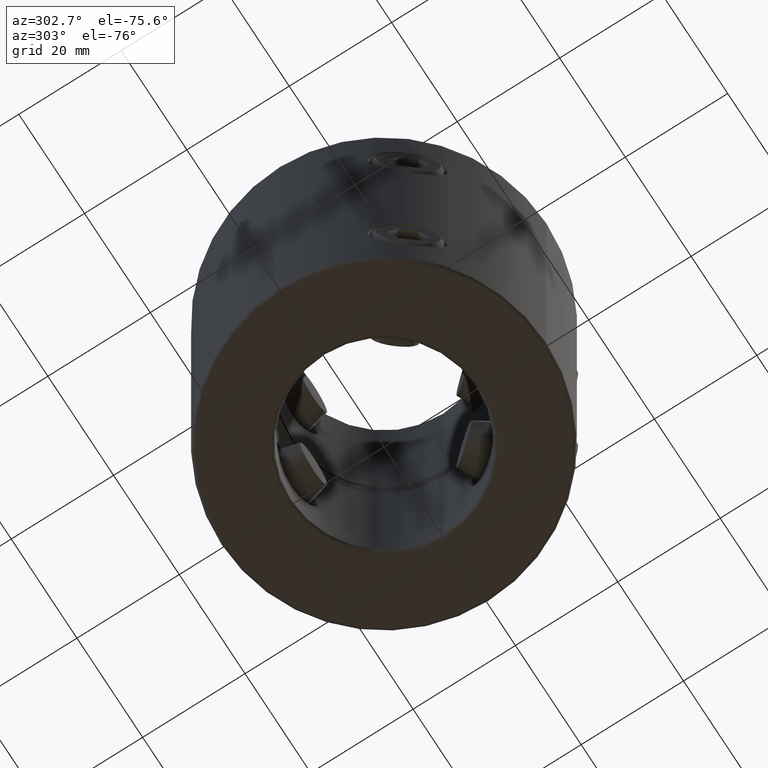
[diagram: clean part render]
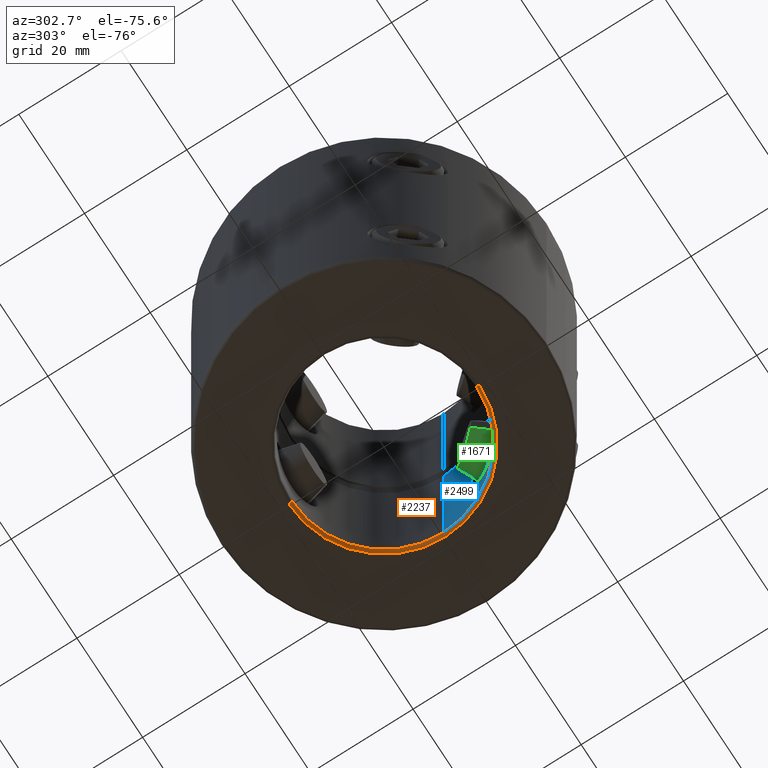
[diagram: same view with three faces highlighted in distinct colors, each labeled with its STEP entity id]
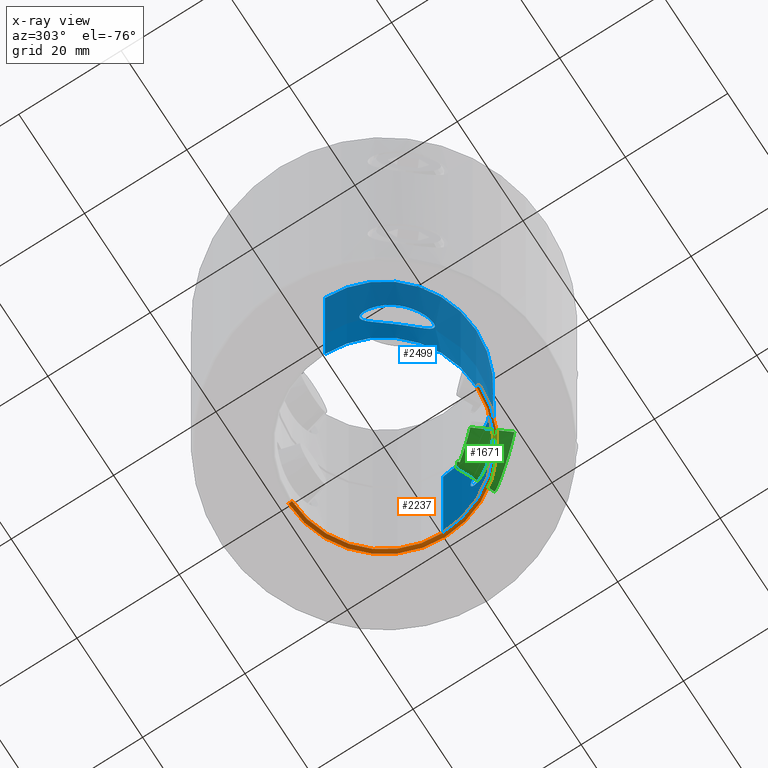
[diagram: x-ray of the same camera — body ghosted, the three highlighted faces saturated]
A machine part, auxiliary view with three faces highlighted in distinct colors.
The next image is the same camera in x-ray (body ghosted, the three faces saturated) — at least one of them is partly hidden behind the body in this view.
Their STEP definitions:

[orange] entity #2237 — the highlighted toroidal blend (fillet) surface has major radius 18.96 mm and minor (blend) radius 1 mm.
#1375=EDGE_CURVE('NONE',#2715,#2929,#3512,.T.);
#1409=EDGE_CURVE('NONE',#2679,#2715,#3547,.T.);
#2237=ADVANCED_FACE('NONE',(#4486),#4487,.T.);
#2425=EDGE_CURVE('NONE',#2797,#2929,#4705,.T.);
#2679=VERTEX_POINT('NONE',#4992);
#2715=VERTEX_POINT('NONE',#5034);
#2727=EDGE_CURVE('NONE',#2797,#2869,#5046,.T.);
#2797=VERTEX_POINT('NONE',#5121);
#2869=VERTEX_POINT('NONE',#5206);
#2929=VERTEX_POINT('NONE',#5272);
#3137=EDGE_CURVE('NONE',#2869,#2679,#5506,.T.);
#3512=CIRCLE('',#6198,18.0);
#3547=CIRCLE('',#6250,18.0);
#4486=FACE_OUTER_BOUND('',#7874,.T.);
#4487=TOROIDAL_SURFACE('',#7875,18.96,1.0);
#4705=CIRCLE('',#8286,1.0);
#4992=CARTESIAN_POINT('',(2.33929385194376E-015,-18.0,-79.33));
#5034=CARTESIAN_POINT('',(18.0,0.0,-79.3300000000001));
#5046=CIRCLE('',#8887,18.64775010008);
#5121=CARTESIAN_POINT('',(-2.28361532570499E-015,18.6477501000801,-80.0));
#5206=CARTESIAN_POINT('',(-1.29398418138517E-030,-18.6477501000801,-80.0));
#5272=CARTESIAN_POINT('',(9.53404706511296E-017,18.0,-79.33));
#5506=CIRCLE('',#9926,1.0);
#6198=AXIS2_PLACEMENT_3D('',#10372,#10373,#10374);
#6250=AXIS2_PLACEMENT_3D('',#10410,#10411,#10412);
#7874=EDGE_LOOP('',(#11586,#11587,#11588,#11589,#11590));
#7875=AXIS2_PLACEMENT_3D('',#11591,#11592,#11593);
#8286=AXIS2_PLACEMENT_3D('',#11898,#11899,#11900);
#8887=AXIS2_PLACEMENT_3D('',#12298,#12299,#12300);
#9926=AXIS2_PLACEMENT_3D('',#12820,#12821,#12822);
#10372=CARTESIAN_POINT('',(4.67858770388668E-015,0.0,-79.33));
#10373=DIRECTION('',(6.98296672221876E-015,-0.0,1.0));
#10374=DIRECTION('',(0.0,1.0,0.0));
#10410=CARTESIAN_POINT('',(4.67858770388668E-015,0.0,-79.33));
#10411=DIRECTION('',(6.98296672221876E-015,-0.0,1.0));
#10412=DIRECTION('',(0.0,1.0,0.0));
#11586=ORIENTED_EDGE('',*,*,#2425,.F.);
#11587=ORIENTED_EDGE('',*,*,#2727,.T.);
#11588=ORIENTED_EDGE('',*,*,#3137,.T.);
#11589=ORIENTED_EDGE('',*,*,#1409,.T.);
#11590=ORIENTED_EDGE('',*,*,#1375,.T.);
#11591=CARTESIAN_POINT('',(6.6338183861078E-015,0.0,-79.05));
#11592=DIRECTION('',(-6.98296672221876E-015,-0.0,-1.0));
#11593=DIRECTION('',(0.0,-1.0,0.0));
#11898=CARTESIAN_POINT('',(4.31196473926057E-015,18.96,-79.05));
#11899=DIRECTION('',(-1.0,-1.22460635382238E-016,6.98296672221876E-015));
#11900=DIRECTION('',(6.98296672221876E-015,0.0,1.0));
#12298=CARTESIAN_POINT('',(5.78124455734435E-017,0.0,-80.0));
#12299=DIRECTION('',(-6.69786379590072E-015,-0.0,-1.0));
#12300=DIRECTION('',(1.0,0.0,-6.69786379590072E-015));
#12820=CARTESIAN_POINT('',(6.6338183861078E-015,-18.96,-79.05));
#12821=DIRECTION('',(1.0,0.0,-6.98296672221876E-015));
#12822=DIRECTION('',(-6.98296672221876E-015,0.0,-1.0));

[blue] entity #2499 — the highlighted cylindrical surface (partial cylindrical patch) has radius 18 mm, axis along (0, -0, 1).
#1277=EDGE_CURVE('NONE',#2715,#1853,#3402,.T.);
#1383=VERTEX_POINT('NONE',#3520);
#1409=EDGE_CURVE('NONE',#2679,#2715,#3547,.T.);
#1543=EDGE_CURVE('NONE',#1887,#1383,#3694,.T.);
#1627=EDGE_CURVE('NONE',#1793,#1827,#3783,.T.);
#1793=VERTEX_POINT('NONE',#3971);
#1827=VERTEX_POINT('NONE',#4010);
#1853=VERTEX_POINT('NONE',#4038);
#1887=VERTEX_POINT('NONE',#4083);
#2019=VERTEX_POINT('NONE',#4234);
#2109=EDGE_CURVE('NONE',#2019,#2849,#4337,.T.);
#2199=EDGE_CURVE('NONE',#3031,#1383,#4442,.T.);
#2435=EDGE_CURVE('NONE',#1853,#3031,#4717,.T.);
#2499=ADVANCED_FACE('NONE',(#4787,#4788,#4789),#4790,.F.);
#2679=VERTEX_POINT('NONE',#4992);
#2715=VERTEX_POINT('NONE',#5034);
#2717=EDGE_CURVE('NONE',#1887,#2679,#5036,.T.);
#2849=VERTEX_POINT('NONE',#5184);
#2919=EDGE_CURVE('NONE',#1827,#1793,#5262,.T.);
#3031=VERTEX_POINT('NONE',#5392);
#3073=EDGE_CURVE('NONE',#2849,#2019,#5435,.T.);
#3402=LINE('',#6012,#6013);
#3520=CARTESIAN_POINT('',(-18.0,2.20429143688028E-015,-42.25));
#3547=CIRCLE('',#6250,18.0);
#3694=LINE('',#6449,#6450);
#3783=B_SPLINE_CURVE_WITH_KNOTS('',3,(#6603,#6604,#6605,#6606,#6607,#6608,#6609,#6610,#6611,#6612,#6613,#6614,#6615,#6616,#6617,#6618,#6619,#6620,#6621,#6622,#6623,#6624,#6625,#6626,#6627,#6628,#6629,#6630,#6631,#6632,#6633,#6634,#6635,#6636,#6637,#6638,#6639,#6640,#6641,#6642,#6643,#6644,#6645,#6646),.UNSPECIFIED.,.F.,.F.,(4,2,2,2,2,2,2,2,2,2,2,2,2,2,2,2,2,2,2,2,2,4),(0.0197750623149012,0.0203928836318597,0.0210107049488182,0.0222463475827353,0.0234819902166523,0.0247176328505694,0.0259532754844864,0.026571096801445,0.0271889181184035,0.0284245607523206,0.0296602033862377,0.0308958460201548,0.0315136673371133,0.0321314886540718,0.0327493099710304,0.0333671312879889,0.034602773921906,0.035838416555823,0.0370740591897401,0.0376918805066986,0.0383097018236572,0.0395453444575742),.UNSPECIFIED.);
#3971=CARTESIAN_POINT('',(13.7887999761416,-11.5701769743578,-70.2250000000001));
#4010=CARTESIAN_POINT('',(13.7887999761417,-11.5701769743578,-57.6750000000001));
#4038=CARTESIAN_POINT('',(18.0,0.0,-42.25));
#4083=CARTESIAN_POINT('',(-18.0,2.20429143688028E-015,-79.3299999999999));
#4234=CARTESIAN_POINT('',(-13.7887999761414,-11.5701769743578,-57.6749999999999));
#4337=B_SPLINE_CURVE_WITH_KNOTS('',3,(#7602,#7603,#7604,#7605,#7606,#7607,#7608,#7609,#7610,#7611,#7612,#7613,#7614,#7615,#7616,#7617,#7618,#7619,#7620,#7621,#7622,#7623,#7624,#7625,#7626,#7627,#7628,#7629,#7630,#7631,#7632,#7633,#7634,#7635,#7636,#7637,#7638,#7639,#7640,#7641,#7642,#7643,#7644,#7645),.UNSPECIFIED.,.F.,.F.,(4,2,2,2,2,2,2,2,2,2,2,2,2,2,2,2,2,2,2,2,2,4),(0.0,0.00123594139468131,0.00185391209202196,0.00247188278936262,0.00370782418404393,0.00432579488138459,0.00494376557872525,0.00617970697340659,0.00741564836808793,0.0080336190654286,0.00865158976276926,0.00988753115745064,0.011123472552132,0.0123594139468133,0.0135953553414947,0.0142133260388353,0.014831296736176,0.0160672381308573,0.0173031795255386,0.0185391209202199,0.0191570916175606,0.0197750623149012),.UNSPECIFIED.);
#4442=CIRCLE('',#7819,18.0);
#4717=CIRCLE('',#8302,18.0);
#4787=FACE_OUTER_BOUND('',#8439,.T.);
#4788=FACE_BOUND('',#8440,.T.);
#4789=FACE_BOUND('',#8441,.T.);
#4790=CYLINDRICAL_SURFACE('',#8442,18.0);
#4992=CARTESIAN_POINT('',(2.33929385194376E-015,-18.0,-79.33));
#5034=CARTESIAN_POINT('',(18.0,0.0,-79.3300000000001));
#5036=CIRCLE('',#8874,18.0);
#5184=CARTESIAN_POINT('',(-13.7887999761415,-11.5701769743578,-70.2249999999999));
#5262=B_SPLINE_CURVE_WITH_KNOTS('',3,(#9410,#9411,#9412,#9413,#9414,#9415,#9416,#9417,#9418,#9419,#9420,#9421,#9422,#9423,#9424,#9425,#9426,#9427,#9428,#9429,#9430,#9431,#9432,#9433,#9434,#9435,#9436,#9437,#9438,#9439,#9440,#9441,#9442,#9443,#9444,#9445,#9446,#9447,#9448,#9449,#9450,#9451,#9452,#9453),.UNSPECIFIED.,.F.,.F.,(4,2,2,2,2,2,2,2,2,2,2,2,2,2,2,2,2,2,2,2,2,4),(0.0,0.00123594139468128,0.00185391209202191,0.00247188278936255,0.00370782418404384,0.00432579488138449,0.00494376557872514,0.00617970697340645,0.00741564836808777,0.00803361906542842,0.00865158976276907,0.0098875311574504,0.0111234725521317,0.0123594139468131,0.0135953553414944,0.0142133260388351,0.0148312967361757,0.0160672381308571,0.0173031795255385,0.0185391209202198,0.0191570916175605,0.0197750623149012),.UNSPECIFIED.);
#5392=CARTESIAN_POINT('',(0.0,-18.0,-42.25));
#5435=B_SPLINE_CURVE_WITH_KNOTS('',3,(#9753,#9754,#9755,#9756,#9757,#9758,#9759,#9760,#9761,#9762,#9763,#9764,#9765,#9766,#9767,#9768,#9769,#9770,#9771,#9772,#9773,#9774,#9775,#9776,#9777,#9778,#9779,#9780,#9781,#9782,#9783,#9784,#9785,#9786,#9787,#9788,#9789,#9790,#9791,#9792,#9793,#9794,#9795,#9796),.UNSPECIFIED.,.F.,.F.,(4,2,2,2,2,2,2,2,2,2,2,2,2,2,2,2,2,2,2,2,2,4),(0.0197750623149012,0.0203928836318597,0.0210107049488183,0.0222463475827354,0.0234819902166524,0.0247176328505695,0.0259532754844866,0.0265710968014451,0.0271889181184037,0.0284245607523207,0.0296602033862378,0.0308958460201548,0.0315136673371134,0.0321314886540719,0.0327493099710304,0.033367131287989,0.034602773921906,0.0358384165558231,0.0370740591897402,0.0376918805066987,0.0383097018236572,0.0395453444575743),.UNSPECIFIED.);
#6012=CARTESIAN_POINT('',(18.0,0.0,0.0499999999999947));
#6013=VECTOR('',#10236,1000.0);
#6250=AXIS2_PLACEMENT_3D('',#10410,#10411,#10412);
#6449=CARTESIAN_POINT('',(-18.0,2.20429143688028E-015,0.0499999999999986));
#6450=VECTOR('',#10569,1000.0);
#6603=CARTESIAN_POINT('',(13.7887999761416,-11.5701769743578,-70.2250000000001));
#6604=CARTESIAN_POINT('',(13.921141945206,-11.4124579572744,-70.2250000000001));
#6605=CARTESIAN_POINT('',(14.0507754509596,-11.252472826585,-70.2148919052618));
#6606=CARTESIAN_POINT('',(14.3046166810949,-10.9279630807056,-70.1741651496481));
#6607=CARTESIAN_POINT('',(14.4295325813266,-10.7624431024768,-70.1432640625024));
#6608=CARTESIAN_POINT('',(14.7897471147497,-10.267898932119,-70.0208314649565));
#6609=CARTESIAN_POINT('',(15.0107698734688,-9.9409705043375,-69.9005310687491));
#6610=CARTESIAN_POINT('',(15.4192506692613,-9.29477356156847,-69.5850497773156));
#6611=CARTESIAN_POINT('',(15.6073756193677,-8.9737876996857,-69.3877722986616));
#6612=CARTESIAN_POINT('',(15.9398010188429,-8.36909689768021,-68.933573701268));
#6613=CARTESIAN_POINT('',(16.0863249188257,-8.08205154383398,-68.6755137938335));
#6614=CARTESIAN_POINT('',(16.3458874232677,-7.54329973533334,-68.0955545871571));
#6615=CARTESIAN_POINT('',(16.4562424254661,-7.29711207434028,-67.7789569235856));
#6616=CARTESIAN_POINT('',(16.5955618633632,-6.97146084311496,-67.2726850686286));
#6617=CARTESIAN_POINT('',(16.6377739437829,-6.86984888523952,-67.0982498403777));
#6618=CARTESIAN_POINT('',(16.714348116669,-6.68138552586608,-66.7376215971465));
#6619=CARTESIAN_POINT('',(16.7488761486617,-6.59409902192724,-66.5502904991622));
#6620=CARTESIAN_POINT('',(16.8397014343886,-6.36022265470308,-65.979211878146));
#6621=CARTESIAN_POINT('',(16.8835732232894,-6.24118242901875,-65.5874113230136));
#6622=CARTESIAN_POINT('',(16.9424661226387,-6.07949377676378,-64.7814043347668));
#6623=CARTESIAN_POINT('',(16.9573187541031,-6.03732893599779,-64.3620870989714));
#6624=CARTESIAN_POINT('',(16.9572527198871,-6.03751440607607,-63.5351125971667));
#6625=CARTESIAN_POINT('',(16.9428634620636,-6.07839180602271,-63.1253444254399));
#6626=CARTESIAN_POINT('',(16.8985016334336,-6.20020240437826,-62.5162520911033));
#6627=CARTESIAN_POINT('',(16.879747749807,-6.25125661030477,-62.3134702332668));
#6628=CARTESIAN_POINT('',(16.8348830570958,-6.3710914103393,-61.9187131920136));
#6629=CARTESIAN_POINT('',(16.8087235415543,-6.44000911327747,-61.7256820799381));
#6630=CARTESIAN_POINT('',(16.7485505662453,-6.59491913562437,-61.3479955475034));
#6631=CARTESIAN_POINT('',(16.714537529615,-6.68091277178711,-61.1633406046862));
#6632=CARTESIAN_POINT('',(16.6379132428601,-6.86951258941996,-60.8023363366826));
#6633=CARTESIAN_POINT('',(16.5950387410251,-6.97272755336936,-60.6251004311971));
#6634=CARTESIAN_POINT('',(16.4541774498798,-7.30184948122195,-60.1141767467888));
#6635=CARTESIAN_POINT('',(16.3442987113063,-7.54665220541186,-59.8006718025944));
#6636=CARTESIAN_POINT('',(16.08665539031,-8.08131042760196,-59.2254495350938));
#6637=CARTESIAN_POINT('',(15.937174469757,-8.37410420307265,-58.9621870643096));
#6638=CARTESIAN_POINT('',(15.6043974549466,-8.97897161992672,-58.5088201741916));
#6639=CARTESIAN_POINT('',(15.4204099345655,-9.29289553922611,-58.3159440532452));
#6640=CARTESIAN_POINT('',(15.1131963408318,-9.77895873172219,-58.0785267580231));
#6641=CARTESIAN_POINT('',(15.0049410091089,-9.94440434281123,-58.0078621981875));
#6642=CARTESIAN_POINT('',(14.7819024850836,-10.2730127684939,-57.8874326247353));
#6643=CARTESIAN_POINT('',(14.6667717027729,-10.4367880215469,-57.8372656507371));
#6644=CARTESIAN_POINT('',(14.3102037603078,-10.926161901158,-57.7163897919558));
#6645=CARTESIAN_POINT('',(14.0575138723289,-11.2499362231967,-57.6750000000001));
#6646=CARTESIAN_POINT('',(13.7887999761417,-11.5701769743578,-57.6750000000001));
#7602=CARTESIAN_POINT('',(-13.7887999761414,-11.5701769743578,-57.6749999999999));
#7603=CARTESIAN_POINT('',(-14.0575788435159,-11.2498587935508,-57.6749999999999));
#7604=CARTESIAN_POINT('',(-14.3103238755254,-10.9260269461275,-57.7163726089907));
#7605=CARTESIAN_POINT('',(-14.667404752266,-10.4359041963638,-57.8375092885881));
#7606=CARTESIAN_POINT('',(-14.7827465583627,-10.2718070963746,-57.8878104382634));
#7607=CARTESIAN_POINT('',(-15.0062705998721,-9.94240712892671,-58.0086588153796));
#7608=CARTESIAN_POINT('',(-15.1142494287503,-9.77732561360831,-58.0792668099583));
#7609=CARTESIAN_POINT('',(-15.4209763536432,-9.29193285040226,-58.3165303220507));
#7610=CARTESIAN_POINT('',(-15.6052371594845,-8.97756105358784,-58.5096363687272));
#7611=CARTESIAN_POINT('',(-15.8556641692769,-8.52220165624878,-58.8513054887421));
#7612=CARTESIAN_POINT('',(-15.9351383213136,-8.3724316614104,-58.9746315869954));
#7613=CARTESIAN_POINT('',(-16.0832520514785,-8.08425931628837,-59.2346325738904));
#7614=CARTESIAN_POINT('',(-16.1521299987628,-7.94547688426194,-59.3714729657328));
#7615=CARTESIAN_POINT('',(-16.3448399517015,-7.54545112066672,-59.8021977980037));
#7616=CARTESIAN_POINT('',(-16.4548799904879,-7.30029395678229,-60.1161116487529));
#7617=CARTESIAN_POINT('',(-16.6433006031098,-6.85987699534884,-60.8007728698485));
#7618=CARTESIAN_POINT('',(-16.7186677438627,-6.67185358650163,-61.1603621789024));
#7619=CARTESIAN_POINT('',(-16.808701987995,-6.44006271950191,-61.7255810630242));
#7620=CARTESIAN_POINT('',(-16.8348317454939,-6.37122682795334,-61.9183244165336));
#7621=CARTESIAN_POINT('',(-16.8796859325317,-6.25142335883704,-62.3128637643731));
#7622=CARTESIAN_POINT('',(-16.8984521389288,-6.20033726826766,-62.5156959370584));
#7623=CARTESIAN_POINT('',(-16.9428104733483,-6.07853937981464,-63.1243706975345));
#7624=CARTESIAN_POINT('',(-16.9572091327051,-6.03763682921803,-63.5337586709004));
#7625=CARTESIAN_POINT('',(-16.9573618536597,-6.0372078824464,-64.3597572622194));
#7626=CARTESIAN_POINT('',(-16.9425897633478,-6.07915047313374,-64.7792580967369));
#7627=CARTESIAN_POINT('',(-16.8836378519164,-6.24100883266758,-65.5869794637142));
#7628=CARTESIAN_POINT('',(-16.8396616889546,-6.36034615096652,-65.9798479082479));
#7629=CARTESIAN_POINT('',(-16.7180451769357,-6.67346794556592,-66.7437571817276));
#7630=CARTESIAN_POINT('',(-16.6418148294475,-6.86338367718968,-67.1048674055695));
#7631=CARTESIAN_POINT('',(-16.5021300123232,-7.18983408263792,-67.6120751409759));
#7632=CARTESIAN_POINT('',(-16.4512583351267,-7.30577173346358,-67.7756812062881));
#7633=CARTESIAN_POINT('',(-16.3399005260715,-7.55154634685109,-68.0919172001933));
#7634=CARTESIAN_POINT('',(-16.279270770546,-7.68163402006411,-68.2446607585529));
#7635=CARTESIAN_POINT('',(-16.0853681428654,-8.08390771003349,-68.6771230527047));
#7636=CARTESIAN_POINT('',(-15.9391195171448,-8.3704172437748,-68.9347336126523));
#7637=CARTESIAN_POINT('',(-15.6061006375531,-8.97602577465502,-69.3892842164698));
#7638=CARTESIAN_POINT('',(-15.4177984380314,-9.29713675135643,-69.5863183058807));
#7639=CARTESIAN_POINT('',(-15.0104428153773,-9.94142177635942,-69.9006360924825));
#7640=CARTESIAN_POINT('',(-14.7898239550649,-10.2677818918881,-70.0207829846069));
#7641=CARTESIAN_POINT('',(-14.4297590700226,-10.762137918713,-70.143198251001));
#7642=CARTESIAN_POINT('',(-14.3047689978623,-10.9277650184991,-70.1741344739559));
#7643=CARTESIAN_POINT('',(-14.0508446002,-11.2523877645043,-70.2148870431004));
#7644=CARTESIAN_POINT('',(-13.9211739436063,-11.4124198230657,-70.2249999999999));
#7645=CARTESIAN_POINT('',(-13.7887999761415,-11.5701769743578,-70.2249999999999));
#7819=AXIS2_PLACEMENT_3D('',#11529,#11530,#11531);
#8302=AXIS2_PLACEMENT_3D('',#11921,#11922,#11923);
#8439=EDGE_LOOP('',(#11995,#11996,#11997,#11998,#11999,#12000));
#8440=EDGE_LOOP('',(#12001,#12002));
#8441=EDGE_LOOP('',(#12003,#12004));
#8442=AXIS2_PLACEMENT_3D('',#12005,#12006,#12007);
#8874=AXIS2_PLACEMENT_3D('',#12294,#12295,#12296);
#9410=CARTESIAN_POINT('',(13.7887999761417,-11.5701769743578,-57.6750000000001));
#9411=CARTESIAN_POINT('',(13.5200211087672,-11.8904951551647,-57.6750000000001));
#9412=CARTESIAN_POINT('',(13.2449977089753,-12.1956332323986,-57.7163726089909));
#9413=CARTESIAN_POINT('',(12.8243274686061,-12.6323981705947,-57.8375092885883));
#9414=CARTESIAN_POINT('',(12.6827522667274,-12.7744828378587,-57.8878104382636));
#9415=CARTESIAN_POINT('',(12.3971711674156,-13.0518107509926,-58.0086588153798));
#9416=CARTESIAN_POINT('',(12.2533479381123,-13.1868152431346,-58.0792668099585));
#9417=CARTESIAN_POINT('',(11.8285919532,-13.5731698656102,-58.3165303220509));
#9418=CARTESIAN_POINT('',(11.5509927235185,-13.8092214254056,-58.5096363687274));
#9419=CARTESIAN_POINT('',(11.1460374525011,-14.1349162157443,-58.8513054887423));
#9420=CARTESIAN_POINT('',(11.0123433420885,-14.239190263507,-58.9746315869956));
#9421=CARTESIAN_POINT('',(10.7542686617392,-14.4350944158854,-59.2346325738906));
#9422=CARTESIAN_POINT('',(10.629555176725,-14.5270252687961,-59.371472965733));
#9423=CARTESIAN_POINT('',(10.2690704354779,-14.7862712694009,-59.8021977980039));
#9424=CARTESIAN_POINT('',(10.0467460119836,-14.93721064749,-60.1161116487531));
#9425=CARTESIAN_POINT('',(9.64573886982257,-15.1992463303939,-60.8007728698487));
#9426=CARTESIAN_POINT('',(9.47365932568978,-15.3061183972348,-61.1603621789026));
#9427=CARTESIAN_POINT('',(9.26102416521221,-15.4350348805471,-61.7255810630243));
#9428=CARTESIAN_POINT('',(9.19777143030223,-15.4727208954419,-61.9183244165338));
#9429=CARTESIAN_POINT('',(9.08757689291859,-15.537697300682,-62.3128637643733));
#9430=CARTESIAN_POINT('',(9.04052563239735,-15.565049412768,-62.5156959370586));
#9431=CARTESIAN_POINT('',(8.92828087148458,-15.6298838257885,-63.1243706975347));
#9432=CARTESIAN_POINT('',(8.89050002349721,-15.6511663905291,-63.5337586709006));
#9433=CARTESIAN_POINT('',(8.89010411310634,-15.6513912771345,-64.3597572622197));
#9434=CARTESIAN_POINT('',(8.92884435503365,-15.6295603536276,-64.7792580967371));
#9435=CARTESIAN_POINT('',(9.07800683040236,-15.5433976450219,-65.5869794637143));
#9436=CARTESIAN_POINT('',(9.18789476612774,-15.4793668709391,-65.9798479082481));
#9437=CARTESIAN_POINT('',(9.47514105140004,-15.3052249579886,-66.7437571817278));
#9438=CARTESIAN_POINT('',(9.64893427539784,-15.1971742000606,-67.1048674055697));
#9439=CARTESIAN_POINT('',(9.94616915171588,-15.0029239911739,-67.6120751409761));
#9440=CARTESIAN_POINT('',(10.051511675075,-14.9326928072732,-67.7756812062883));
#9441=CARTESIAN_POINT('',(10.2742153392212,-14.7803484598256,-68.0919172001935));
#9442=CARTESIAN_POINT('',(10.3917984418133,-14.6980503191305,-68.2446607585531));
#9443=CARTESIAN_POINT('',(10.7542898525864,-14.4372394148746,-68.6771230527049));
#9444=CARTESIAN_POINT('',(11.011050855384,-14.2434607759792,-68.9347336126524));
#9445=CARTESIAN_POINT('',(11.5496307103155,-13.810338383691,-69.3892842164699));
#9446=CARTESIAN_POINT('',(11.8331649559507,-13.5691365817597,-69.5863183058809));
#9447=CARTESIAN_POINT('',(12.3969252821871,-13.056090685847,-69.9006360924827));
#9448=CARTESIAN_POINT('',(12.6800171911815,-12.7821516824259,-70.0207829846072));
#9449=CARTESIAN_POINT('',(13.1043382280174,-12.341712968872,-70.1431982510012));
#9450=CARTESIAN_POINT('',(13.2457447817387,-12.1898609327089,-70.1741344739561));
#9451=CARTESIAN_POINT('',(13.5213422698894,-11.8834240689391,-70.2148870431006));
#9452=CARTESIAN_POINT('',(13.6564260086768,-11.7279341256499,-70.2250000000001));
#9453=CARTESIAN_POINT('',(13.7887999761416,-11.5701769743578,-70.2250000000001));
#9753=CARTESIAN_POINT('',(-13.7887999761415,-11.5701769743578,-70.2249999999999));
#9754=CARTESIAN_POINT('',(-13.6564580070771,-11.7278959914412,-70.2249999999999));
#9755=CARTESIAN_POINT('',(-13.5214140320463,-11.8833411993556,-70.2148919052616));
#9756=CARTESIAN_POINT('',(-13.2459133854059,-12.1896765368341,-70.1741651496479));
#9757=CARTESIAN_POINT('',(-13.1045994460047,-12.3414369264436,-70.1432640625022));
#9758=CARTESIAN_POINT('',(-12.6801191101274,-12.7820556856648,-70.0208314649563));
#9759=CARTESIAN_POINT('',(-12.3965376590426,-13.0564911377553,-69.9005310687489));
#9760=CARTESIAN_POINT('',(-11.8310898456321,-13.5709771139341,-69.5850497773154));
#9761=CARTESIAN_POINT('',(-11.5476480350023,-13.8119826333067,-69.3877722986614));
#9762=CARTESIAN_POINT('',(-11.0098689098412,-14.2443611998282,-68.9335737012678));
#9763=CARTESIAN_POINT('',(-10.752628028124,-14.4385039751361,-68.6755137938333));
#9764=CARTESIAN_POINT('',(-10.2671336260502,-14.7876764116627,-68.095554587157));
#9765=CARTESIAN_POINT('',(-10.0438490538365,-14.9391049121068,-67.7789569235854));
#9766=CARTESIAN_POINT('',(-9.74733776305222,-15.1328565175505,-67.2726850686284));
#9767=CARTESIAN_POINT('',(-9.65459956997814,-15.1920720329329,-67.0982498403775));
#9768=CARTESIAN_POINT('',(-9.48229635808646,-15.3002091909837,-66.7376215971463));
#9769=CARTESIAN_POINT('',(-9.40233166210811,-15.3493698069303,-66.550290499162));
#9770=CARTESIAN_POINT('',(-9.18778004777198,-15.4794274574515,-65.9792118781459));
#9771=CARTESIAN_POINT('',(-9.07816656679135,-15.5433038535588,-65.5874113230134));
#9772=CARTESIAN_POINT('',(-8.92916097312607,-15.6293789772488,-64.7814043347667));
#9773=CARTESIAN_POINT('',(-8.89021584342256,-15.6513278116282,-64.3620870989712));
#9774=CARTESIAN_POINT('',(-8.89038702907231,-15.6512305740792,-63.5351125971665));
#9775=CARTESIAN_POINT('',(-8.92814474106371,-15.629961635406,-63.1253444254397));
#9776=CARTESIAN_POINT('',(-9.04040141202374,-15.5651215742084,-62.5162520911031));
#9777=CARTESIAN_POINT('',(-9.0874234121281,-15.5377871343925,-62.3134702332667));
#9778=CARTESIAN_POINT('',(-9.19764698015191,-15.472794942527,-61.9187131920135));
#9779=CARTESIAN_POINT('',(-9.26097511612277,-15.4350654152824,-61.7256820799379));
#9780=CARTESIAN_POINT('',(-9.40308277964207,-15.3489067595934,-61.3479955475032));
#9781=CARTESIAN_POINT('',(-9.48186367741709,-15.3004778192058,-61.163340604686));
#9782=CARTESIAN_POINT('',(-9.65429257227857,-15.1922676129002,-60.8023363366825));
#9783=CARTESIAN_POINT('',(-9.7484943898908,-15.1321213806889,-60.6251004311969));
#9784=CARTESIAN_POINT('',(-10.0481559096152,-14.9362486660678,-60.1141767467886));
#9785=CARTESIAN_POINT('',(-10.2701592876383,-14.785529685486,-59.8006718025942));
#9786=CARTESIAN_POINT('',(-10.7519555568837,-14.438958119499,-59.2254495350936));
#9787=CARTESIAN_POINT('',(-11.014344047551,-14.2409050444684,-58.9621870643094));
#9788=CARTESIAN_POINT('',(-11.5522360470221,-13.808149535592,-58.5088201741914));
#9789=CARTESIAN_POINT('',(-11.8294416589764,-13.5724448825508,-58.315944053245));
#9790=CARTESIAN_POINT('',(-12.2547733786941,-13.1854945660032,-58.0785267580229));
#9791=CARTESIAN_POINT('',(-12.39890715812,-13.050154547149,-58.0078621981874));
#9792=CARTESIAN_POINT('',(-12.683793050191,-12.7734422251827,-57.8874326247351));
#9793=CARTESIAN_POINT('',(-12.8250879386074,-12.6316212639131,-57.8372656507369));
#9794=CARTESIAN_POINT('',(-13.2451097559466,-12.1954915073057,-57.7163897919557));
#9795=CARTESIAN_POINT('',(-13.5200860799542,-11.8904177255188,-57.6749999999999));
#9796=CARTESIAN_POINT('',(-13.7887999761414,-11.5701769743578,-57.6749999999999));
#10236=DIRECTION('',(1.07175985593471E-016,0.0,1.0));
#10410=CARTESIAN_POINT('',(4.67858770388668E-015,0.0,-79.33));
#10411=DIRECTION('',(6.98296672221876E-015,-0.0,1.0));
#10412=DIRECTION('',(0.0,1.0,0.0));
#10569=DIRECTION('',(1.07175985593471E-016,0.0,1.0));
#11529=CARTESIAN_POINT('',(0.0,0.0,-42.25));
#11530=DIRECTION('',(0.0,0.0,-1.0));
#11531=DIRECTION('',(0.0,-1.0,0.0));
#11921=CARTESIAN_POINT('',(0.0,0.0,-42.25));
#11922=DIRECTION('',(0.0,0.0,-1.0));
#11923=DIRECTION('',(0.0,-1.0,0.0));
#11995=ORIENTED_EDGE('',*,*,#2717,.F.);
#11996=ORIENTED_EDGE('',*,*,#1543,.T.);
#11997=ORIENTED_EDGE('',*,*,#2199,.F.);
#11998=ORIENTED_EDGE('',*,*,#2435,.F.);
#11999=ORIENTED_EDGE('',*,*,#1277,.F.);
#12000=ORIENTED_EDGE('',*,*,#1409,.F.);
#12001=ORIENTED_EDGE('',*,*,#1627,.T.);
#12002=ORIENTED_EDGE('',*,*,#2919,.T.);
#12003=ORIENTED_EDGE('',*,*,#3073,.T.);
#12004=ORIENTED_EDGE('',*,*,#2109,.T.);
#12005=CARTESIAN_POINT('',(-9.0578996606572E-016,0.0,0.0499999999999967));
#12006=DIRECTION('',(1.07290839985545E-016,-0.0,1.0));
#12007=DIRECTION('',(1.0,0.0,-1.07290839985545E-016));
#12294=CARTESIAN_POINT('',(4.67858770388668E-015,0.0,-79.33));
#12295=DIRECTION('',(6.98296672221876E-015,-0.0,1.0));
#12296=DIRECTION('',(0.0,1.0,0.0));

[green] entity #1671 — the highlighted conical surface has half-angle 15 deg.
#1309=EDGE_CURVE('NONE',#2187,#2441,#3441,.T.);
#1671=ADVANCED_FACE('NONE',(#3834),#3835,.T.);
#1965=VERTEX_POINT('NONE',#4172);
#2167=EDGE_CURVE('NONE',#3085,#1965,#4406,.T.);
#2187=VERTEX_POINT('NONE',#4430);
#2441=VERTEX_POINT('NONE',#4723);
#2987=EDGE_CURVE('NONE',#2187,#3085,#5340,.T.);
#3085=VERTEX_POINT('NONE',#5448);
#3133=EDGE_CURVE('NONE',#2441,#1965,#5502,.T.);
#3441=CIRCLE('',#6061,4.1);
#3834=FACE_OUTER_BOUND('',#6762,.T.);
#3835=CONICAL_SURFACE('',#6763,4.1,0.26179938779915);
#4172=CARTESIAN_POINT('',(19.3050753751384,-9.41578637804571,-60.95));
#4406=CIRCLE('',#7729,6.0);
#4430=CARTESIAN_POINT('',(8.25076245605751,-11.5583268206827,-66.0));
#4723=CARTESIAN_POINT('',(12.8154597297142,-6.11833244569743,-61.9));
#5340=LINE('',#9580,#9581);
#5448=CARTESIAN_POINT('',(12.6250305844214,-17.3767537560729,-66.95));
#5502=LINE('',#9918,#9919);
#6061=AXIS2_PLACEMENT_3D('',#10303,#10304,#10305);
#6762=EDGE_LOOP('',(#10708,#10709,#10710,#10711));
#6763=AXIS2_PLACEMENT_3D('',#10712,#10713,#10714);
#7729=AXIS2_PLACEMENT_3D('',#11488,#11489,#11490);
#9580=CARTESIAN_POINT('',(8.25076245605751,-11.5583268206827,-66.0));
#9581=VECTOR('',#12630,1000.0);
#9918=CARTESIAN_POINT('',(12.8154597297142,-6.11833244569743,-61.9));
#9919=VECTOR('',#12818,1000.0);
#10303=CARTESIAN_POINT('',(10.5331110928858,-8.83832963319007,-63.95));
#10304=DIRECTION('',(0.766044443118975,-0.642787609686543,4.22690503129149E-016));
#10305=DIRECTION('',(-0.556670399226422,-0.663413948168936,-0.5));
#10708=ORIENTED_EDGE('',*,*,#1309,.T.);
#10709=ORIENTED_EDGE('',*,*,#3133,.T.);
#10710=ORIENTED_EDGE('',*,*,#2167,.F.);
#10711=ORIENTED_EDGE('',*,*,#2987,.F.);
#10712=CARTESIAN_POINT('',(10.5331110928858,-8.83832963319007,-63.95));
#10713=DIRECTION('',(0.766044443118975,-0.642787609686543,4.22690503129149E-016));
#10714=DIRECTION('',(-0.556670399226422,-0.663413948168936,-0.5));
#11488=CARTESIAN_POINT('',(15.9650529797799,-13.3962700670593,-63.95));
#11489=DIRECTION('',(0.766044443118975,-0.642787609686543,4.44089209850063E-016));
#11490=DIRECTION('',(-0.556670399226422,-0.663413948168936,-0.5));
#12630=DIRECTION('',(0.595865210529223,-0.792589317587626,-0.12940952255126));
#12818=DIRECTION('',(0.884019012858467,-0.449180988442071,0.129409522551261));